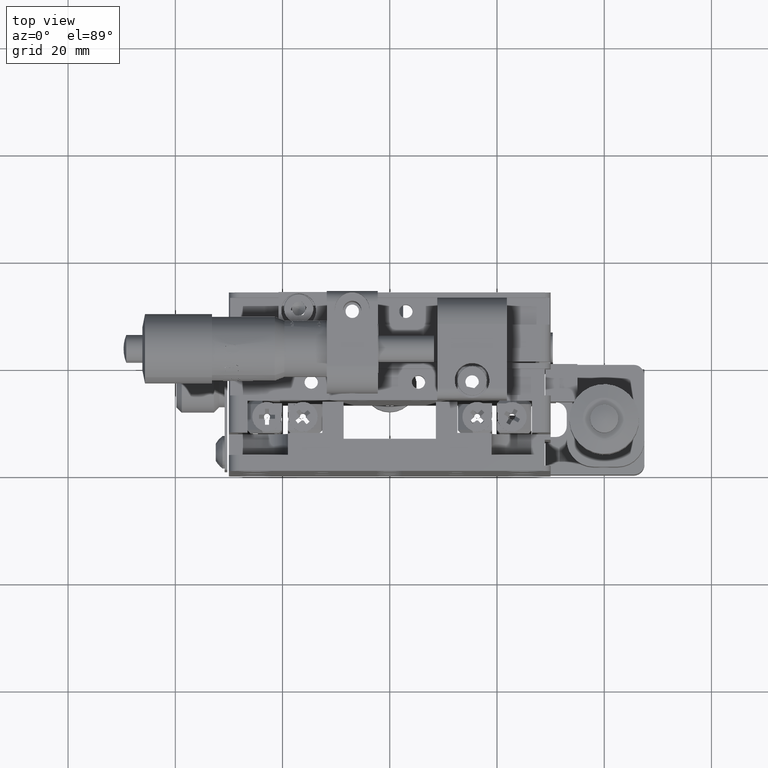
[diagram: clean part render]
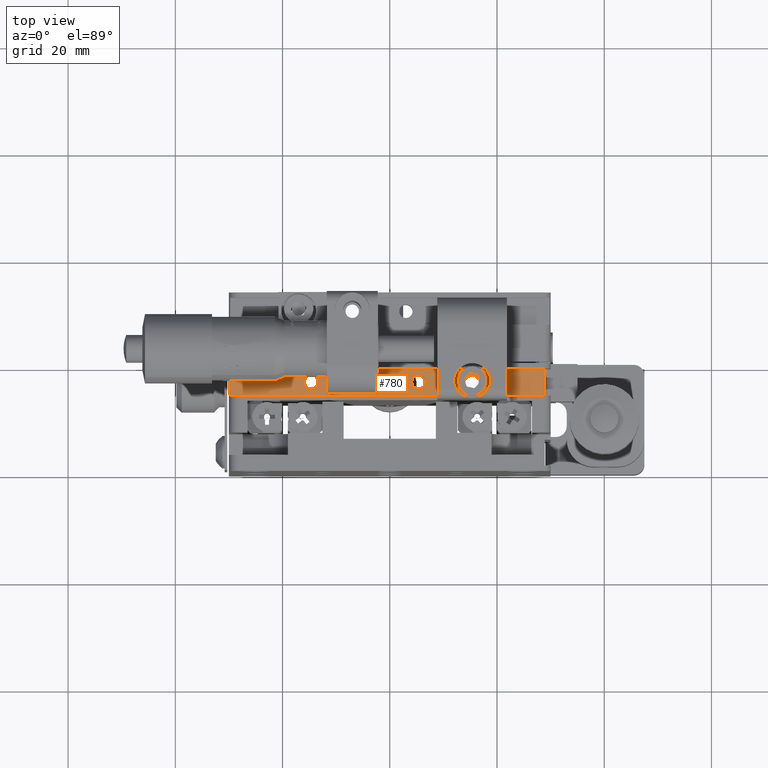
[diagram: same view with one face highlighted and labeled with its STEP entity id]
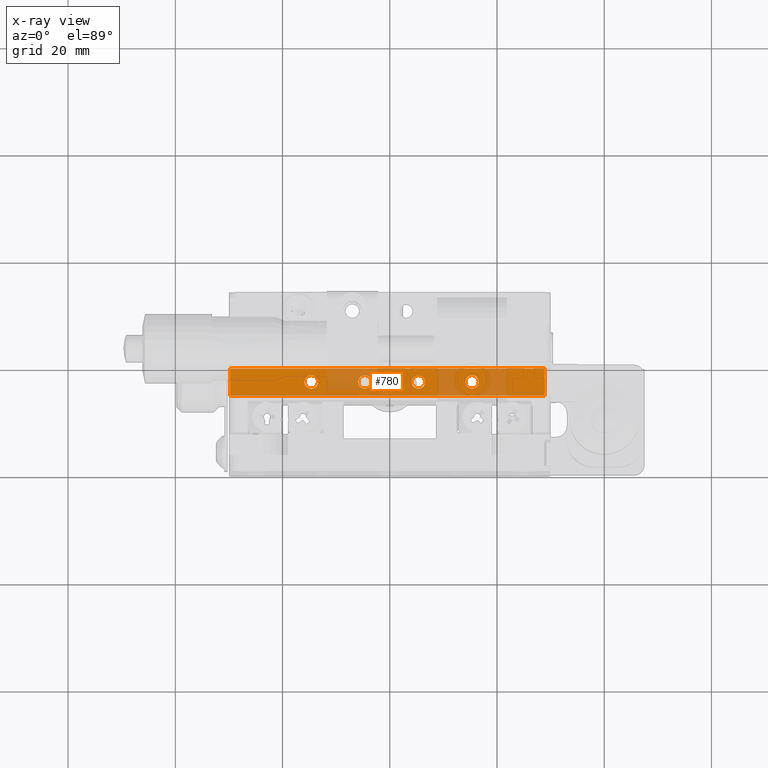
[diagram: x-ray of the same camera — body ghosted, the highlighted face saturated]
A machine part, top view. The second image highlights one B-rep face of the part: STEP entity #780.
The next image is the same camera in x-ray: the body ghosted, the highlighted face saturated — about 25% of this face is hidden behind the body in this view.
In plain terms, the highlighted planar face has unit normal (0, 0, -1).
Its self-contained STEP definition (entity closure, byte-faithful):
#695 = EDGE_CURVE ( 'NONE', #8596, #33374, #60687, .T. ) ;
#780 = ADVANCED_FACE ( 'NONE', ( #10803, #25658, #53674, #68547, #38811 ), #24973, .F. ) ;
#921 = CARTESIAN_POINT ( 'NONE',  ( 28.90000000000026100, 14.10000000000022000, 28.90000000000000200 ) ) ;
#1767 = CARTESIAN_POINT ( 'NONE',  ( -5.899999999999990600, 16.60000000000006900, 28.90000000000000200 ) ) ;
#1957 = EDGE_CURVE ( 'NONE', #64290, #28108, #45615, .T. ) ;
#3306 = EDGE_LOOP ( 'NONE', ( #32120, #57815 ) ) ;
#3949 = CARTESIAN_POINT ( 'NONE',  ( 30.00000000000000000, 19.10000000000002600, 28.90000000000000200 ) ) ;
#4102 = ORIENTED_EDGE ( 'NONE', *, *, #695, .F. ) ;
#4625 = CARTESIAN_POINT ( 'NONE',  ( -13.40000000000001300, 16.60000000000006500, 28.90000000000000200 ) ) ;
#5384 = VERTEX_POINT ( 'NONE', #6710 ) ;
#5591 = LINE ( 'NONE', #27509, #18717 ) ;
#6086 = CIRCLE ( 'NONE', #21902, 1.249999999999990700 ) ;
#6146 = EDGE_CURVE ( 'NONE', #5384, #54329, #68845, .T. ) ;
#6710 = CARTESIAN_POINT ( 'NONE',  ( -29.78605710994916600, 19.10000000000002600, 28.90000000000000200 ) ) ;
#8596 = VERTEX_POINT ( 'NONE', #71404 ) ;
#8942 = DIRECTION ( 'NONE',  ( -0.0000000000000000000, -0.0000000000000000000, 1.000000000000000000 ) ) ;
#9562 = DIRECTION ( 'NONE',  ( -1.000000000000000000, 0.0000000000000000000, 0.0000000000000000000 ) ) ;
#10803 = FACE_BOUND ( 'NONE', #60912, .T. ) ;
#12074 = CIRCLE ( 'NONE', #44601, 1.249999999999988900 ) ;
#13979 = CIRCLE ( 'NONE', #15809, 1.249999999999988900 ) ;
#14195 = CARTESIAN_POINT ( 'NONE',  ( 28.90000000000000200, 19.09999999999996900, 28.90000000000000200 ) ) ;
#14770 = DIRECTION ( 'NONE',  ( -1.000000000000000000, -0.0000000000000000000, 0.0000000000000000000 ) ) ;
#15809 = AXIS2_PLACEMENT_3D ( 'NONE', #22670, #61798, #28304 ) ;
#18049 = EDGE_CURVE ( 'NONE', #28108, #64290, #34869, .T. ) ;
#18330 = CARTESIAN_POINT ( 'NONE',  ( -3.400000000000012300, 16.60000000000006900, 28.90000000000000200 ) ) ;
#18584 = EDGE_CURVE ( 'NONE', #20115, #27943, #29400, .T. ) ;
#18717 = VECTOR ( 'NONE', #39029, 1000.000000000000000 ) ;
#20115 = VERTEX_POINT ( 'NONE', #4625 ) ;
#20815 = LINE ( 'NONE', #14195, #33956 ) ;
#21029 = VERTEX_POINT ( 'NONE', #71714 ) ;
#21354 = CIRCLE ( 'NONE', #69002, 1.249999999999988900 ) ;
#21470 = CARTESIAN_POINT ( 'NONE',  ( -14.65000000000000200, 16.60000000000006500, 28.90000000000000200 ) ) ;
#21714 = ORIENTED_EDGE ( 'NONE', *, *, #27899, .T. ) ;
#21782 = DIRECTION ( 'NONE',  ( -0.0000000000000000000, -0.0000000000000000000, 1.000000000000000000 ) ) ;
#21902 = AXIS2_PLACEMENT_3D ( 'NONE', #42435, #8942, #48052 ) ;
#22063 = EDGE_CURVE ( 'NONE', #27943, #20115, #12074, .T. ) ;
#22670 = CARTESIAN_POINT ( 'NONE',  ( 5.349999999999998800, 16.60000000000006900, 28.90000000000000200 ) ) ;
#22820 = DIRECTION ( 'NONE',  ( -0.0000000000000000000, -0.0000000000000000000, 1.000000000000000000 ) ) ;
#24973 = PLANE ( 'NONE',  #49814 ) ;
#25535 = CARTESIAN_POINT ( 'NONE',  ( 30.00000000000000000, 19.10000000000002600, 28.90000000000000200 ) ) ;
#25579 = VERTEX_POINT ( 'NONE', #34838 ) ;
#25658 = FACE_BOUND ( 'NONE', #59178, .T. ) ;
#25989 = VECTOR ( 'NONE', #42416, 1000.000000000000000 ) ;
#26022 = CARTESIAN_POINT ( 'NONE',  ( -15.89999999999999000, 16.60000000000006500, 28.90000000000000200 ) ) ;
#27075 = DIRECTION ( 'NONE',  ( 1.000000000000000000, 0.0000000000000000000, 0.0000000000000000000 ) ) ;
#27509 = CARTESIAN_POINT ( 'NONE',  ( 30.00000000000000000, 14.10000000000003000, 28.90000000000000200 ) ) ;
#27899 = EDGE_CURVE ( 'NONE', #35359, #5384, #50735, .T. ) ;
#27943 = VERTEX_POINT ( 'NONE', #26022 ) ;
#28108 = VERTEX_POINT ( 'NONE', #1767 ) ;
#28304 = DIRECTION ( 'NONE',  ( 1.000000000000000000, 0.0000000000000000000, 0.0000000000000000000 ) ) ;
#28527 = DIRECTION ( 'NONE',  ( -0.0000000000000000000, -0.0000000000000000000, 1.000000000000000000 ) ) ;
#29400 = CIRCLE ( 'NONE', #62192, 1.249999999999988900 ) ;
#29659 = EDGE_CURVE ( 'NONE', #21029, #25579, #21354, .T. ) ;
#29803 = EDGE_CURVE ( 'NONE', #48728, #54329, #5591, .T. ) ;
#29933 = CARTESIAN_POINT ( 'NONE',  ( -29.78605710994916200, 14.10000000000003000, 28.90000000000000200 ) ) ;
#31170 = CARTESIAN_POINT ( 'NONE',  ( -29.78605710994917300, 19.10000000000002600, 28.90000000000000200 ) ) ;
#32120 = ORIENTED_EDGE ( 'NONE', *, *, #1957, .F. ) ;
#32250 = ORIENTED_EDGE ( 'NONE', *, *, #18584, .F. ) ;
#33374 = VERTEX_POINT ( 'NONE', #48474 ) ;
#33956 = VECTOR ( 'NONE', #36501, 1000.000000000000000 ) ;
#34838 = CARTESIAN_POINT ( 'NONE',  ( 4.100000000000010300, 16.60000000000006900, 28.90000000000000200 ) ) ;
#34840 = DIRECTION ( 'NONE',  ( 1.000000000000000000, 0.0000000000000000000, 0.0000000000000000000 ) ) ;
#34869 = CIRCLE ( 'NONE', #70104, 1.249999999999988900 ) ;
#35008 = AXIS2_PLACEMENT_3D ( 'NONE', #46156, #40556, #67932 ) ;
#35359 = VERTEX_POINT ( 'NONE', #63738 ) ;
#36501 = DIRECTION ( 'NONE',  ( -5.204170427930681300E-014, 1.000000000000000000, 0.0000000000000000000 ) ) ;
#38811 = FACE_OUTER_BOUND ( 'NONE', #65869, .T. ) ;
#39029 = DIRECTION ( 'NONE',  ( -1.000000000000000000, -0.0000000000000000000, 0.0000000000000000000 ) ) ;
#40427 = DIRECTION ( 'NONE',  ( -0.0000000000000000000, -0.0000000000000000000, 1.000000000000000000 ) ) ;
#40556 = DIRECTION ( 'NONE',  ( -0.0000000000000000000, -0.0000000000000000000, 1.000000000000000000 ) ) ;
#41058 = ORIENTED_EDGE ( 'NONE', *, *, #29659, .F. ) ;
#41131 = ORIENTED_EDGE ( 'NONE', *, *, #41405, .F. ) ;
#41405 = EDGE_CURVE ( 'NONE', #25579, #21029, #13979, .T. ) ;
#41652 = EDGE_CURVE ( 'NONE', #33374, #8596, #6086, .T. ) ;
#42416 = DIRECTION ( 'NONE',  ( -0.0000000000000000000, -1.000000000000000000, -3.469446951953714000E-015 ) ) ;
#42435 = CARTESIAN_POINT ( 'NONE',  ( 15.35000000000000000, 16.60000000000006900, 28.90000000000000200 ) ) ;
#42758 = ORIENTED_EDGE ( 'NONE', *, *, #6146, .T. ) ;
#43062 = DIRECTION ( 'NONE',  ( 0.0000000000000000000, 0.0000000000000000000, -1.000000000000000000 ) ) ;
#43422 = ORIENTED_EDGE ( 'NONE', *, *, #50937, .T. ) ;
#44601 = AXIS2_PLACEMENT_3D ( 'NONE', #62025, #28527, #67672 ) ;
#45615 = CIRCLE ( 'NONE', #35008, 1.249999999999988900 ) ;
#46029 = CARTESIAN_POINT ( 'NONE',  ( 15.35000000000000000, 16.60000000000006900, 28.90000000000000200 ) ) ;
#46156 = CARTESIAN_POINT ( 'NONE',  ( -4.650000000000001200, 16.60000000000006900, 28.90000000000000200 ) ) ;
#48052 = DIRECTION ( 'NONE',  ( 1.000000000000000000, 0.0000000000000000000, 0.0000000000000000000 ) ) ;
#48474 = CARTESIAN_POINT ( 'NONE',  ( 14.10000000000001000, 16.60000000000006900, 28.90000000000000200 ) ) ;
#48728 = VERTEX_POINT ( 'NONE', #921 ) ;
#49066 = ORIENTED_EDGE ( 'NONE', *, *, #22063, .F. ) ;
#49814 = AXIS2_PLACEMENT_3D ( 'NONE', #3949, #43062, #9562 ) ;
#50735 = LINE ( 'NONE', #25535, #63866 ) ;
#50937 = EDGE_CURVE ( 'NONE', #48728, #35359, #20815, .T. ) ;
#52892 = ORIENTED_EDGE ( 'NONE', *, *, #41652, .F. ) ;
#53674 = FACE_BOUND ( 'NONE', #69617, .T. ) ;
#54329 = VERTEX_POINT ( 'NONE', #29933 ) ;
#55260 = CARTESIAN_POINT ( 'NONE',  ( -4.650000000000001200, 16.60000000000006900, 28.90000000000000200 ) ) ;
#56314 = CARTESIAN_POINT ( 'NONE',  ( 5.349999999999998800, 16.60000000000006900, 28.90000000000000200 ) ) ;
#57815 = ORIENTED_EDGE ( 'NONE', *, *, #18049, .F. ) ;
#59178 = EDGE_LOOP ( 'NONE', ( #41058, #41131 ) ) ;
#60590 = DIRECTION ( 'NONE',  ( -0.0000000000000000000, -0.0000000000000000000, 1.000000000000000000 ) ) ;
#60687 = CIRCLE ( 'NONE', #62477, 1.249999999999990700 ) ;
#60895 = DIRECTION ( 'NONE',  ( 1.000000000000000000, 0.0000000000000000000, 0.0000000000000000000 ) ) ;
#60912 = EDGE_LOOP ( 'NONE', ( #4102, #52892 ) ) ;
#61798 = DIRECTION ( 'NONE',  ( -0.0000000000000000000, -0.0000000000000000000, 1.000000000000000000 ) ) ;
#61946 = DIRECTION ( 'NONE',  ( 1.000000000000000000, 0.0000000000000000000, 0.0000000000000000000 ) ) ;
#62025 = CARTESIAN_POINT ( 'NONE',  ( -14.65000000000000200, 16.60000000000006500, 28.90000000000000200 ) ) ;
#62192 = AXIS2_PLACEMENT_3D ( 'NONE', #21470, #60590, #27075 ) ;
#62477 = AXIS2_PLACEMENT_3D ( 'NONE', #46029, #40427, #34840 ) ;
#63738 = CARTESIAN_POINT ( 'NONE',  ( 28.90000000000000200, 19.09999999999996900, 28.90000000000000200 ) ) ;
#63866 = VECTOR ( 'NONE', #14770, 1000.000000000000000 ) ;
#64290 = VERTEX_POINT ( 'NONE', #18330 ) ;
#65869 = EDGE_LOOP ( 'NONE', ( #21714, #42758, #71219, #43422 ) ) ;
#67672 = DIRECTION ( 'NONE',  ( 1.000000000000000000, 0.0000000000000000000, 0.0000000000000000000 ) ) ;
#67932 = DIRECTION ( 'NONE',  ( 1.000000000000000000, 0.0000000000000000000, 0.0000000000000000000 ) ) ;
#68547 = FACE_BOUND ( 'NONE', #3306, .T. ) ;
#68845 = LINE ( 'NONE', #31170, #25989 ) ;
#69002 = AXIS2_PLACEMENT_3D ( 'NONE', #56314, #22820, #61946 ) ;
#69617 = EDGE_LOOP ( 'NONE', ( #32250, #49066 ) ) ;
#70104 = AXIS2_PLACEMENT_3D ( 'NONE', #55260, #21782, #60895 ) ;
#71219 = ORIENTED_EDGE ( 'NONE', *, *, #29803, .F. ) ;
#71404 = CARTESIAN_POINT ( 'NONE',  ( 16.59999999999999100, 16.60000000000006900, 28.90000000000000200 ) ) ;
#71714 = CARTESIAN_POINT ( 'NONE',  ( 6.599999999999988100, 16.60000000000006900, 28.90000000000000200 ) ) ;